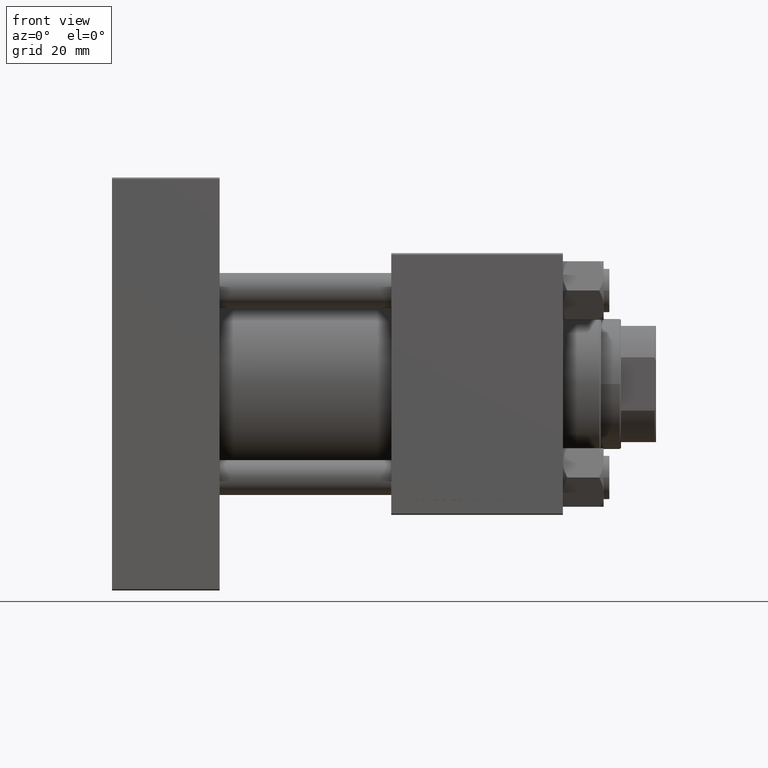
[diagram: clean part render]
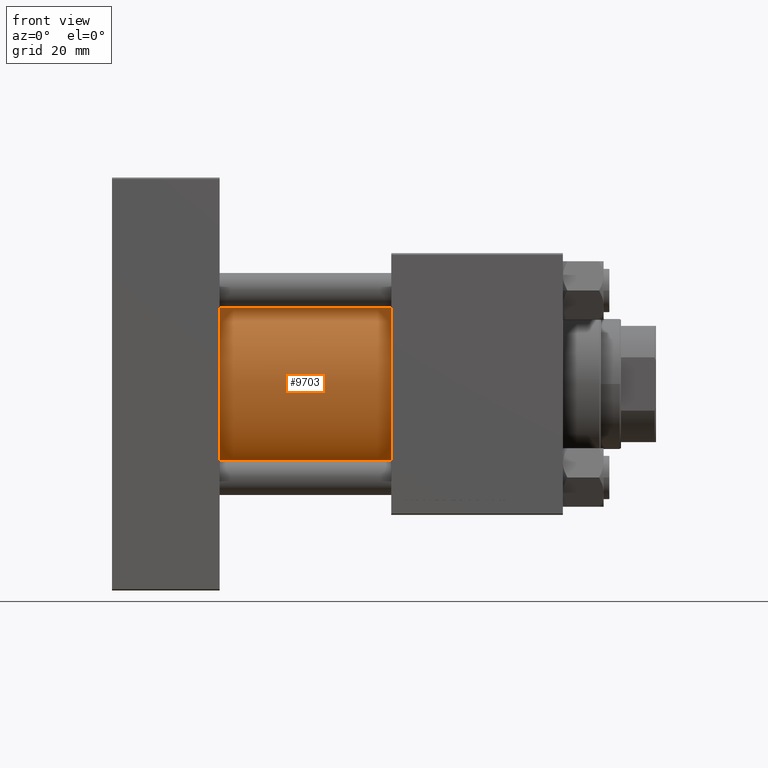
[diagram: same view with one face highlighted and labeled with its STEP entity id]
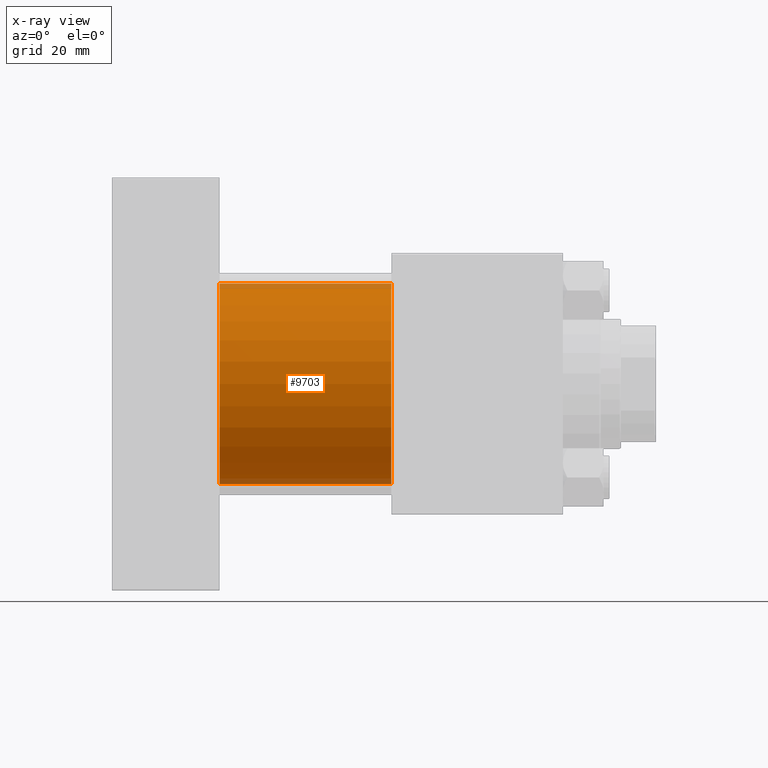
[diagram: x-ray of the same camera — body ghosted, the highlighted face saturated]
A machine part, front view. The second image highlights one B-rep face of the part: STEP entity #9703.
The next image is the same camera in x-ray: the body ghosted, the highlighted face saturated — about 5% of this face is hidden behind the body in this view.
In plain terms, the highlighted cylindrical surface (partial cylindrical patch) has radius 34.5 mm, axis along (-1, -0, -0).
Its self-contained STEP definition (entity closure, byte-faithful):
#569 = AXIS2_PLACEMENT_3D ( 'NONE', #23645, #27191, #39299 ) ;
#943 = CARTESIAN_POINT ( 'NONE',  ( 96.00000000000000000, -2.602085213965210642E-15, 0.000000000000000000 ) ) ;
#3160 = CARTESIAN_POINT ( 'NONE',  ( 37.00000000000000000, -2.602085213965210642E-15, 34.50000000000000000 ) ) ;
#4230 = EDGE_CURVE ( 'NONE', #24201, #7644, #7140, .T. ) ;
#4442 = EDGE_CURVE ( 'NONE', #24201, #26252, #37510, .T. ) ;
#4551 = CARTESIAN_POINT ( 'NONE',  ( 96.00000000000000000, -2.602085213965210642E-15, 34.50000000000000000 ) ) ;
#4732 = FACE_OUTER_BOUND ( 'NONE', #33209, .T. ) ;
#7140 = LINE ( 'NONE', #4551, #27869 ) ;
#7644 = VERTEX_POINT ( 'NONE', #3160 ) ;
#8264 = ORIENTED_EDGE ( 'NONE', *, *, #15569, .F. ) ;
#9066 = ORIENTED_EDGE ( 'NONE', *, *, #4442, .F. ) ;
#9703 = ADVANCED_FACE ( 'NONE', ( #4732 ), #35550, .T. ) ;
#13322 = AXIS2_PLACEMENT_3D ( 'NONE', #49298, #48190, #36097 ) ;
#14556 = CARTESIAN_POINT ( 'NONE',  ( 96.00000000000000000, 1.622946243093158675E-15, -34.50000000000000000 ) ) ;
#15569 = EDGE_CURVE ( 'NONE', #26252, #30009, #29993, .T. ) ;
#16347 = DIRECTION ( 'NONE',  ( -1.000000000000000000, -0.000000000000000000, -0.000000000000000000 ) ) ;
#23645 = CARTESIAN_POINT ( 'NONE',  ( 37.00000000000000000, -2.602085213965210642E-15, 0.000000000000000000 ) ) ;
#24201 = VERTEX_POINT ( 'NONE', #31748 ) ;
#25662 = VECTOR ( 'NONE', #25947, 1000.000000000000000 ) ;
#25947 = DIRECTION ( 'NONE',  ( -1.000000000000000000, -0.000000000000000000, -0.000000000000000000 ) ) ;
#26252 = VERTEX_POINT ( 'NONE', #44570 ) ;
#27191 = DIRECTION ( 'NONE',  ( 1.000000000000000000, 0.000000000000000000, 0.000000000000000000 ) ) ;
#27869 = VECTOR ( 'NONE', #45513, 1000.000000000000000 ) ;
#28714 = AXIS2_PLACEMENT_3D ( 'NONE', #943, #16347, #31765 ) ;
#29993 = LINE ( 'NONE', #14556, #25662 ) ;
#30009 = VERTEX_POINT ( 'NONE', #49116 ) ;
#30424 = CIRCLE ( 'NONE', #569, 34.50000000000000000 ) ;
#31748 = CARTESIAN_POINT ( 'NONE',  ( 96.00000000000000000, -2.602085213965210642E-15, 34.50000000000000000 ) ) ;
#31765 = DIRECTION ( 'NONE',  ( 0.000000000000000000, 0.000000000000000000, 1.000000000000000000 ) ) ;
#33209 = EDGE_LOOP ( 'NONE', ( #8264, #9066, #45389, #41964 ) ) ;
#33490 = EDGE_CURVE ( 'NONE', #7644, #30009, #30424, .T. ) ;
#35550 = CYLINDRICAL_SURFACE ( 'NONE', #28714, 34.50000000000000000 ) ;
#36097 = DIRECTION ( 'NONE',  ( 0.000000000000000000, 0.000000000000000000, -1.000000000000000000 ) ) ;
#37510 = CIRCLE ( 'NONE', #13322, 34.50000000000000000 ) ;
#39299 = DIRECTION ( 'NONE',  ( 0.000000000000000000, 0.000000000000000000, 1.000000000000000000 ) ) ;
#41964 = ORIENTED_EDGE ( 'NONE', *, *, #33490, .T. ) ;
#44570 = CARTESIAN_POINT ( 'NONE',  ( 96.00000000000000000, 1.622946243093158675E-15, -34.50000000000000000 ) ) ;
#45389 = ORIENTED_EDGE ( 'NONE', *, *, #4230, .T. ) ;
#45513 = DIRECTION ( 'NONE',  ( -1.000000000000000000, -0.000000000000000000, -0.000000000000000000 ) ) ;
#48190 = DIRECTION ( 'NONE',  ( 1.000000000000000000, 0.000000000000000000, 0.000000000000000000 ) ) ;
#49116 = CARTESIAN_POINT ( 'NONE',  ( 37.00000000000000000, 1.622946243093158675E-15, -34.50000000000000000 ) ) ;
#49298 = CARTESIAN_POINT ( 'NONE',  ( 96.00000000000000000, -2.602085213965210642E-15, 0.000000000000000000 ) ) ;